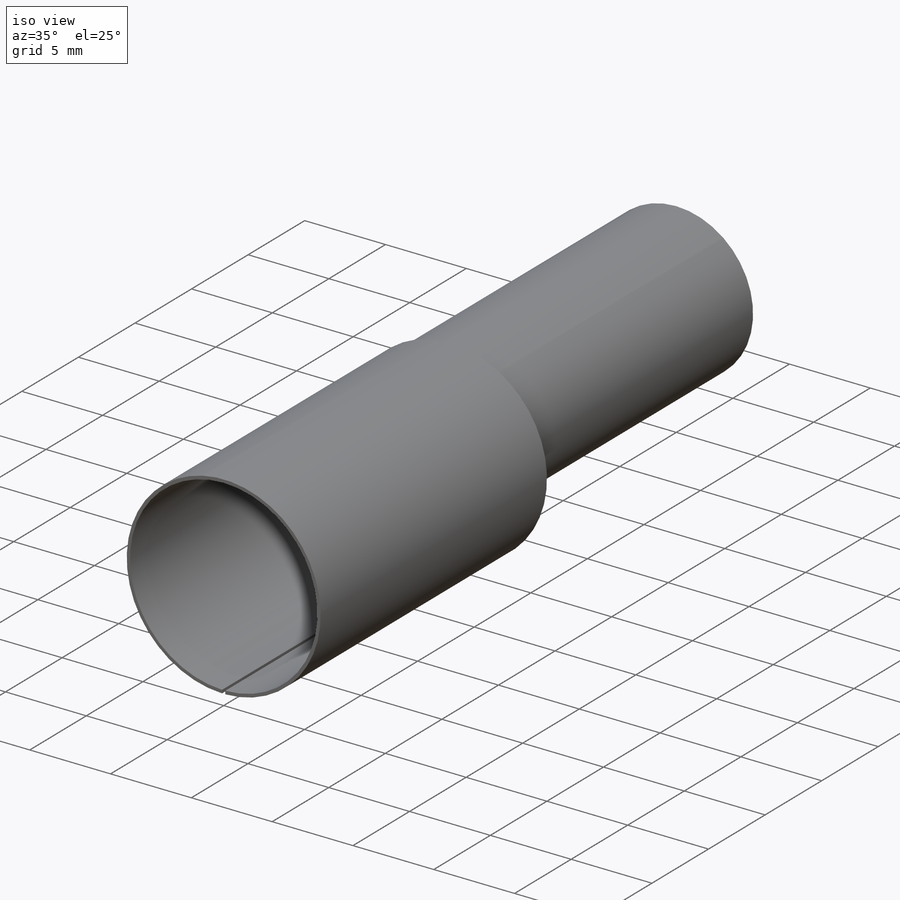
[diagram: iso view]
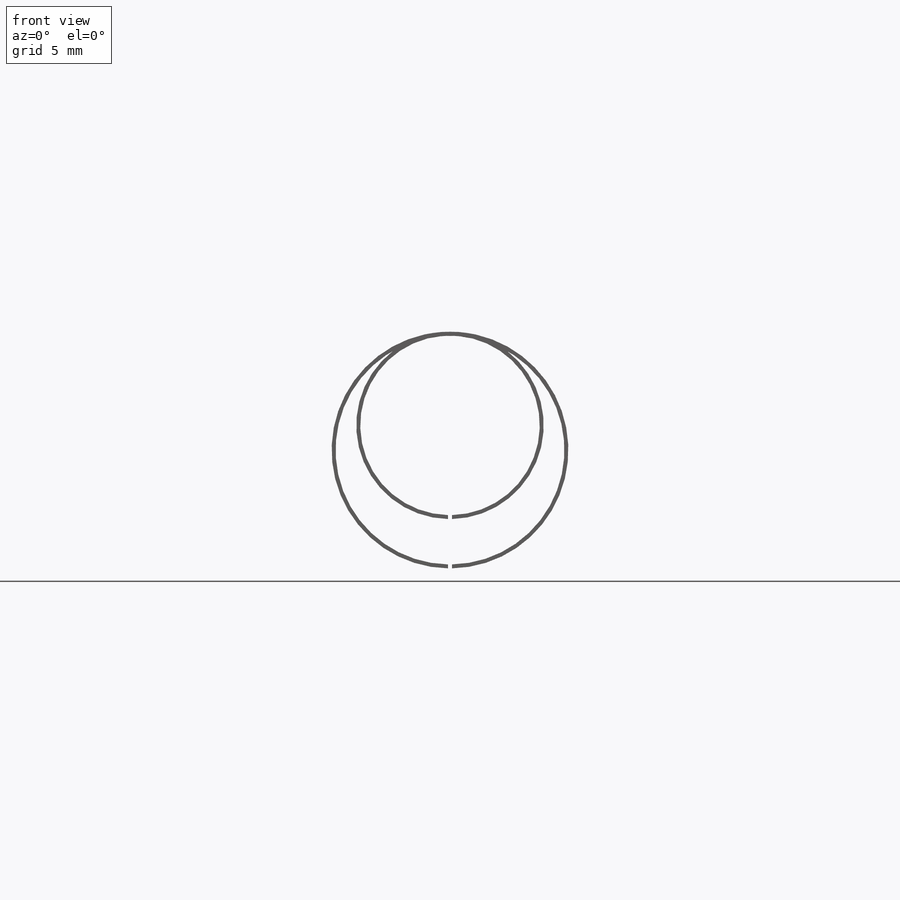
[diagram: front view]
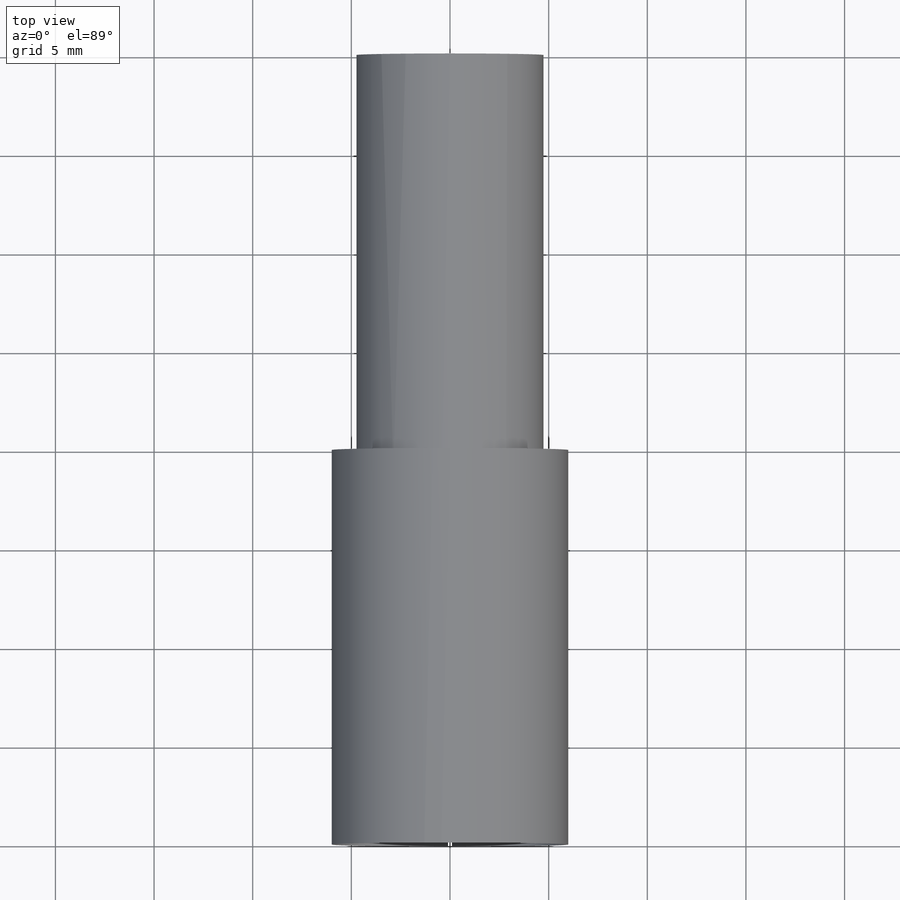
[diagram: top view]
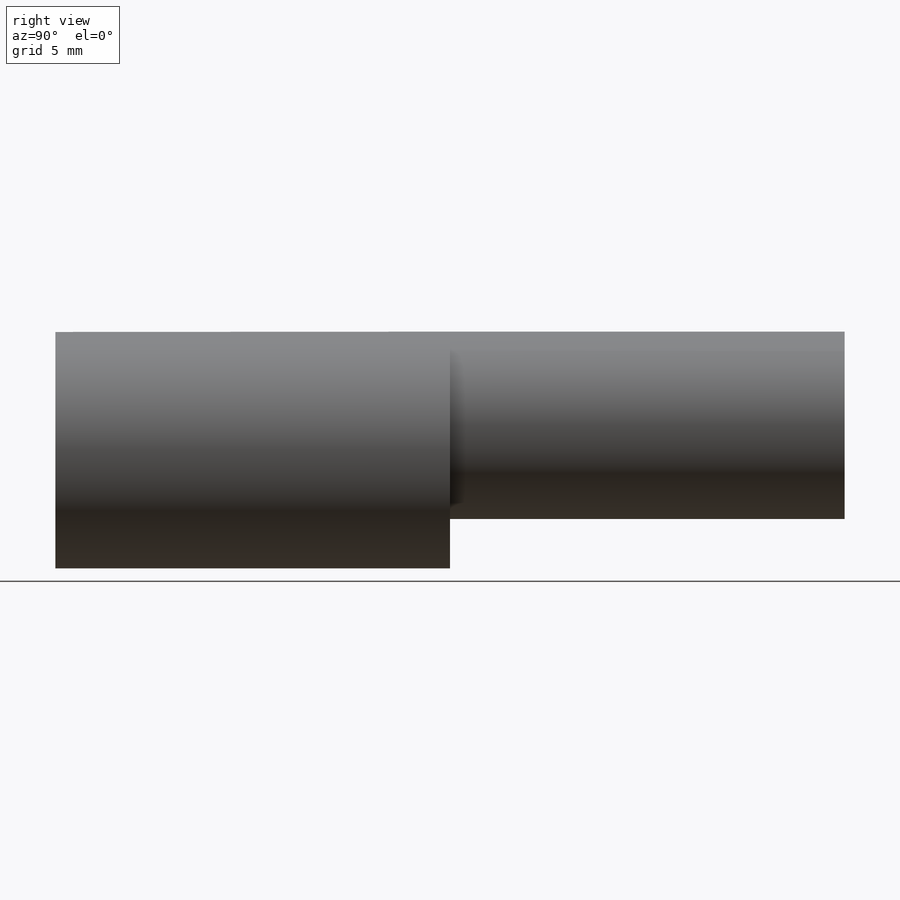
[diagram: right view]
SOLIDWORKS PART (.sldprt)
format: sldprt  version: not decoded by parser v0  size: 177,152 bytes
history: native  units: mm
features: plane x3, sketch x3, extrude x2, material x1, cut_extrude x1 (+9 scaffold rows collapsed)
feature tree (19):
  scaffold x9  (default folders/planes/origin — collapsed)
  material  "Material <nicht festgelegt>"
  plane  "Ebene vorne"
  plane  "Ebene oben"
  plane  "Ebene rechts"
  sketch  "Skizze1"  dims[D1=12.0mm D2=0.2mm]
  extrude  "Aufsatz-Linear austragen1"  Depth=20mm
  sketch  "Skizze14"  dims[D1=9.5mm D2=0.2mm]
  extrude  "Aufsatz-Linear austragen2"  Depth=20mm
  sketch  "Skizze13"  dims[D1=0.1mm D2=0.1mm]
  cut_extrude  "Schnitt-Linear austragen3"  Depth=20mm
decode coverage: 6 of 6 modeling features carry decoded parameters
note: suppression state not decoded; provenance and decode notes live in map.json
